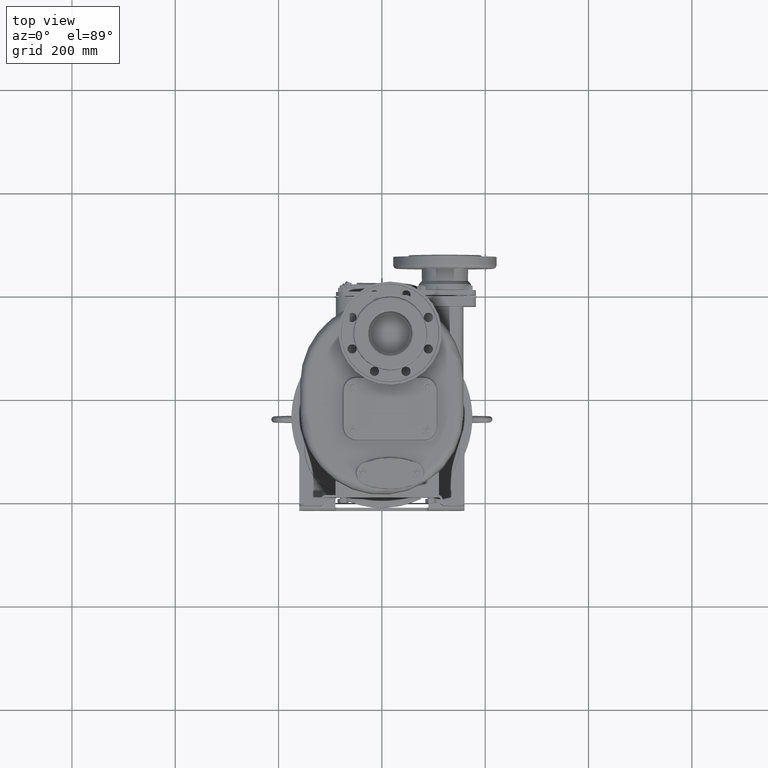
[diagram: clean part render]
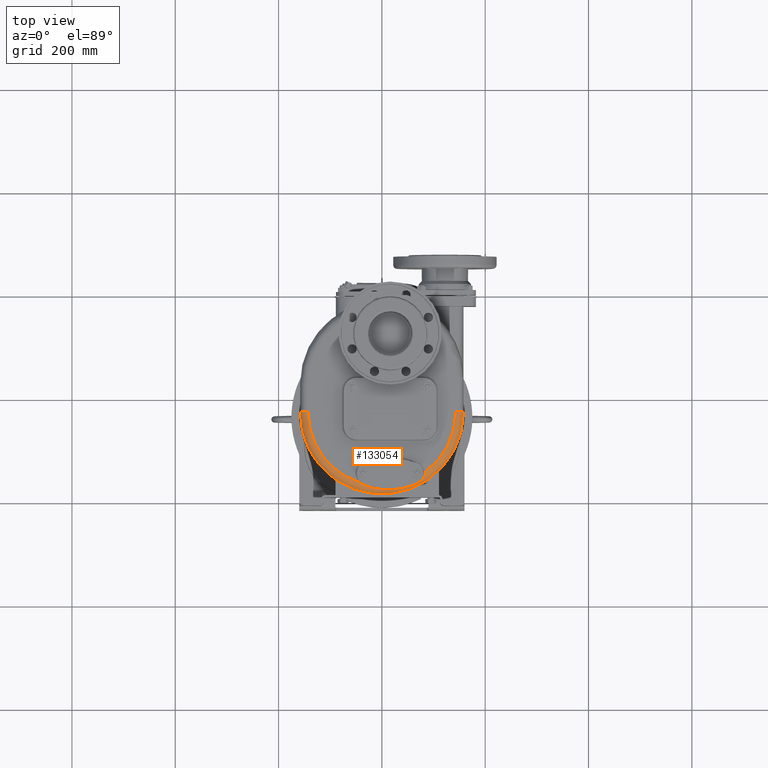
[diagram: same view with one face highlighted and labeled with its STEP entity id]
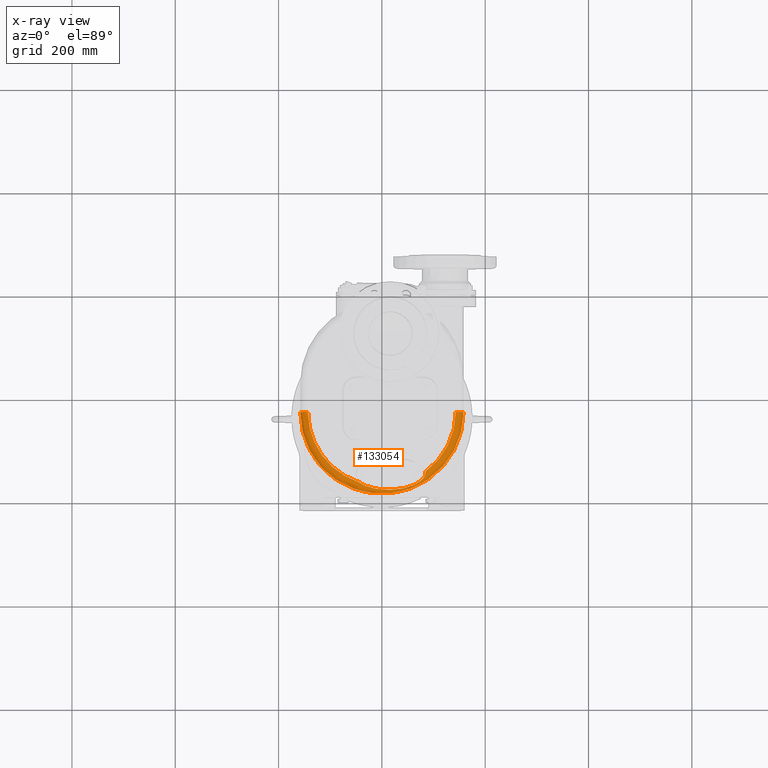
[diagram: x-ray of the same camera — body ghosted, the highlighted face saturated]
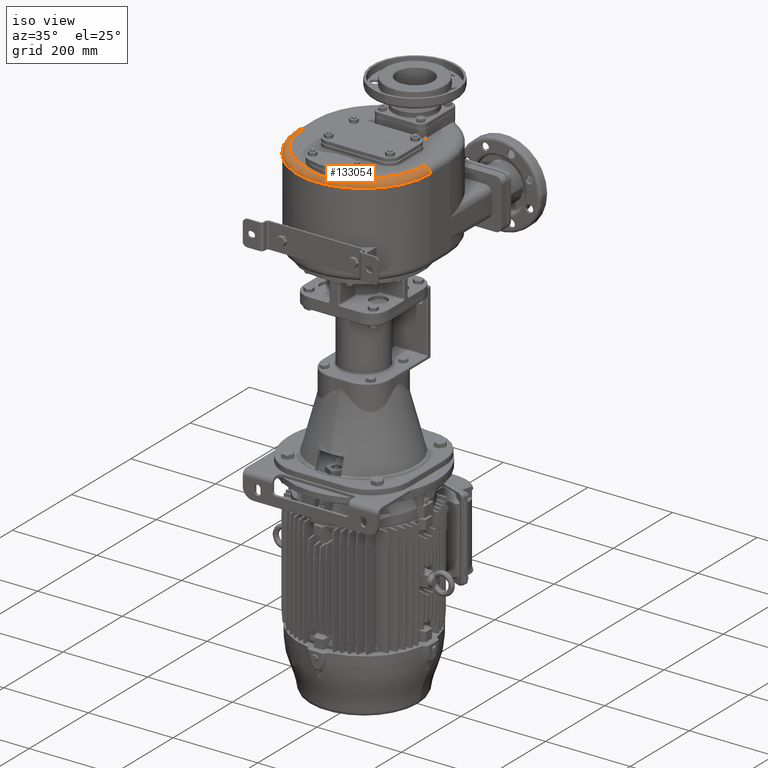
[diagram: same view with one face highlighted and labeled with its STEP entity id]
A machine part, top view. The second image highlights one B-rep face of the part: STEP entity #133054.
The next image is the same camera in x-ray: the body ghosted, the highlighted face saturated — about 0% of this face is hidden behind the body in this view.
A second angle (iso view) of the same face is appended — the face is thin or edge-on in the first view.
In plain terms, the highlighted toroidal blend (fillet) surface has major radius 143 mm and minor (blend) radius 15 mm.
Its self-contained STEP definition (entity closure, byte-faithful):
#40160=CARTESIAN_POINT('',(-4.409924901421E1,2.096964950101E1,
1.559999776601E2));
#40162=CARTESIAN_POINT('',(0.E0,1.57E2,1.56E2));
#40163=DIRECTION('',(0.E0,0.E0,1.E0));
#40164=DIRECTION('',(-1.E0,0.E0,0.E0));
#40165=AXIS2_PLACEMENT_3D('',#40162,#40163,#40164);
#40185=CARTESIAN_POINT('',(0.E0,1.57E2,1.56E2));
#40186=DIRECTION('',(0.E0,0.E0,1.E0));
#40187=DIRECTION('',(5.916859136736E-1,-8.061685801123E-1,0.E0));
#40188=AXIS2_PLACEMENT_3D('',#40185,#40186,#40187);
#40190=CARTESIAN_POINT('',(8.461108473852E1,4.171789323653E1,1.560000319229E2));
#40420=CARTESIAN_POINT('',(8.460359247683E1,3.855497053226E1,1.557803664729E2));
#40421=CARTESIAN_POINT('',(8.462182413228E1,3.871590638759E1,1.558011952710E2));
#40422=CARTESIAN_POINT('',(8.465262176851E1,3.903495510130E1,1.558399387258E2));
#40423=CARTESIAN_POINT('',(8.468265061589E1,3.950477363960E1,1.558892407209E2));
#40424=CARTESIAN_POINT('',(8.469713961478E1,3.996568165939E1,1.559296332185E2));
#40425=CARTESIAN_POINT('',(8.469668756076E1,4.041758653612E1,1.559610754823E2));
#40426=CARTESIAN_POINT('',(8.468210156164E1,4.086048475829E1,1.559835411101E2));
#40427=CARTESIAN_POINT('',(8.465404929221E1,4.129438218874E1,1.559969944910E2));
#40428=CARTESIAN_POINT('',(8.462677021856E1,4.157773326689E1,1.560000309021E2));
#40429=CARTESIAN_POINT('',(8.461108473852E1,4.171789323653E1,1.560000319229E2));
#40431=CARTESIAN_POINT('',(-1.43E2,1.57E2,1.41E2));
#40432=DIRECTION('',(0.E0,-1.E0,0.E0));
#40433=DIRECTION('',(0.E0,0.E0,1.E0));
#40434=AXIS2_PLACEMENT_3D('',#40431,#40432,#40433);
#40436=CARTESIAN_POINT('',(-4.409924901421E1,2.096964950101E1,
1.559999776601E2));
#40437=CARTESIAN_POINT('',(-4.380445396044E1,2.075047803573E1,
1.559999771572E2));
#40438=CARTESIAN_POINT('',(-4.319411842922E1,2.030872646438E1,
1.559972401822E2));
#40439=CARTESIAN_POINT('',(-4.221633246229E1,1.963902316639E1,
1.559849752002E2));
#40440=CARTESIAN_POINT('',(-4.117089998015E1,1.896177015423E1,
1.559648440645E2));
#40441=CARTESIAN_POINT('',(-4.005413770562E1,1.827771933360E1,
1.559370245731E2));
#40442=CARTESIAN_POINT('',(-3.886148781193E1,1.758771946025E1,
1.559017453147E2));
#40443=CARTESIAN_POINT('',(-3.758909452563E1,1.689301310389E1,
1.558592255724E2));
#40444=CARTESIAN_POINT('',(-3.623575119074E1,1.619660323775E1,
1.558098258832E2));
#40445=CARTESIAN_POINT('',(-3.480033010194E1,1.550123755814E1,
1.557539238938E2));
#40446=CARTESIAN_POINT('',(-3.328017468623E1,1.480903104098E1,
1.556918581019E2));
#40447=CARTESIAN_POINT('',(-3.167309617120E1,1.412231308167E1,
1.556239482997E2));
#40448=CARTESIAN_POINT('',(-2.997809181126E1,1.344405849052E1,
1.555505633330E2));
#40449=CARTESIAN_POINT('',(-2.819440350352E1,1.277716578232E1,
1.554720185314E2));
#40450=CARTESIAN_POINT('',(-2.632142455019E1,1.212465250162E1,
1.553886058052E2));
#40451=CARTESIAN_POINT('',(-2.435940976147E1,1.148973844517E1,
1.553005824648E2));
#40452=CARTESIAN_POINT('',(-2.230903754196E1,1.087565317605E1,
1.552081387927E2));
#40453=CARTESIAN_POINT('',(-2.017153667844E1,1.028578046953E1,
1.551114392340E2));
#40454=CARTESIAN_POINT('',(-1.794882705707E1,9.723409307260E0,
1.550105379417E2));
#40455=CARTESIAN_POINT('',(-1.564342602751E1,9.191994822902E0,
1.549054868307E2));
#40456=CARTESIAN_POINT('',(-1.325879392764E1,8.694827721085E0,
1.547962176920E2));
#40457=CARTESIAN_POINT('',(-1.079886079784E1,8.235246560101E0,
1.546826665123E2));
#40458=CARTESIAN_POINT('',(-8.268620147142E0,7.816358538263E0,
1.545646648222E2));
#40459=CARTESIAN_POINT('',(-5.673372025294E0,7.441191811587E0,
1.544420621994E2));
#40460=CARTESIAN_POINT('',(-3.019463376089E0,7.112449557151E0,
1.543146268013E2));
#40461=CARTESIAN_POINT('',(-3.134541818787E-1,6.832687165776E0,
1.541821901321E2));
#40462=CARTESIAN_POINT('',(2.437299078098E0,6.603992925258E0,1.540445100027E2));
#40463=CARTESIAN_POINT('',(5.225242169301E0,6.428312473003E0,1.539014932683E2));
#40464=CARTESIAN_POINT('',(8.042415262096E0,6.306979142083E0,1.537529651407E2));
#40465=CARTESIAN_POINT('',(1.088063084612E1,6.241211166889E0,1.535989985980E2));
#40466=CARTESIAN_POINT('',(1.373162739820E1,6.231581314603E0,1.534396236737E2));
#40467=CARTESIAN_POINT('',(1.658697368298E1,6.278428651094E0,1.532751146912E2));
#40468=CARTESIAN_POINT('',(1.943823663446E1,6.381694303545E0,1.531059280090E2));
#40469=CARTESIAN_POINT('',(2.227735308128E1,6.540699328384E0,1.529325127140E2));
#40470=CARTESIAN_POINT('',(2.509643220816E1,6.754818020596E0,1.527558285793E2));
#40471=CARTESIAN_POINT('',(2.788761121279E1,7.022753337043E0,1.525768559421E2));
#40472=CARTESIAN_POINT('',(3.064262511163E1,7.342702390556E0,1.523967783976E2));
#40473=CARTESIAN_POINT('',(3.335335709348E1,7.712900242625E0,1.522174096010E2));
#40474=CARTESIAN_POINT('',(3.601154514047E1,8.130597611679E0,1.520403936563E2));
#40475=CARTESIAN_POINT('',(3.860824409787E1,8.592766657225E0,1.518679265989E2));
#40476=CARTESIAN_POINT('',(4.113473791370E1,9.095916908105E0,1.517024570493E2));
#40477=CARTESIAN_POINT('',(4.358275414241E1,9.635660840155E0,1.515461280336E2));
#40478=CARTESIAN_POINT('',(4.594382964457E1,1.020761610344E1,1.514017402133E2));
#40479=CARTESIAN_POINT('',(4.821111130503E1,1.080654459880E1,1.512713005565E2));
#40480=CARTESIAN_POINT('',(5.037977006529E1,1.142773708708E1,1.511569638330E2));
#40481=CARTESIAN_POINT('',(5.244516544889E1,1.206589710613E1,1.510603732388E2));
#40482=CARTESIAN_POINT('',(5.440777112453E1,1.271698324016E1,1.509824945009E2));
#40483=CARTESIAN_POINT('',(5.626730760676E1,1.337694543932E1,1.509242345793E2));
#40484=CARTESIAN_POINT('',(5.802754929428E1,1.404278708591E1,1.508855545395E2));
#40485=CARTESIAN_POINT('',(5.969264676571E1,1.471235360862E1,1.508665397244E2));
#40486=CARTESIAN_POINT('',(6.126773442492E1,1.538384491576E1,1.508666323551E2));
#40487=CARTESIAN_POINT('',(6.275869243632E1,1.605637544688E1,1.508852921175E2));
#40488=CARTESIAN_POINT('',(6.417122427114E1,1.672936502541E1,1.509217955841E2));
#40489=CARTESIAN_POINT('',(6.551073786318E1,1.740245542159E1,1.509752709930E2));
#40490=CARTESIAN_POINT('',(6.678255117116E1,1.807577219645E1,1.510449212924E2));
#40491=CARTESIAN_POINT('',(6.799118169908E1,1.874931074850E1,1.511297949664E2));
#40492=CARTESIAN_POINT('',(6.914063056416E1,1.942319020036E1,1.512289816761E2));
#40493=CARTESIAN_POINT('',(7.023466617809E1,2.009768088327E1,1.513415399175E2));
#40494=CARTESIAN_POINT('',(7.127598207238E1,2.077267594297E1,1.514664560732E2));
#40495=CARTESIAN_POINT('',(7.226740848398E1,2.144837347913E1,1.516027484661E2));
#40496=CARTESIAN_POINT('',(7.321083988737E1,2.212453677118E1,1.517493351596E2));
#40497=CARTESIAN_POINT('',(7.410811671245E1,2.280103541311E1,1.519051469485E2));
#40498=CARTESIAN_POINT('',(7.496067676357E1,2.347753161459E1,1.520690414605E2));
#40499=CARTESIAN_POINT('',(7.576962720298E1,2.415353794698E1,1.522398577156E2));
#40500=CARTESIAN_POINT('',(7.653611564381E1,2.482859676854E1,1.524164136503E2));
#40501=CARTESIAN_POINT('',(7.726093577384E1,2.550199886702E1,1.525974875651E2));
#40502=CARTESIAN_POINT('',(7.794496109287E1,2.617310479631E1,1.527818921835E2));
#40503=CARTESIAN_POINT('',(7.858903514177E1,2.684116997028E1,1.529684083824E2));
#40504=CARTESIAN_POINT('',(7.919388861684E1,2.750537893586E1,1.531558622086E2));
#40505=CARTESIAN_POINT('',(7.976034095098E1,2.816494119564E1,1.533431159972E2));
#40506=CARTESIAN_POINT('',(8.028932301223E1,2.881907514694E1,1.535290592654E2));
#40507=CARTESIAN_POINT('',(8.078171395330E1,2.946698834292E1,1.537126629820E2));
#40508=CARTESIAN_POINT('',(8.123844116932E1,3.010788072649E1,1.538929492525E2));
#40509=CARTESIAN_POINT('',(8.166059386352E1,3.074104947025E1,1.540690132604E2));
#40510=CARTESIAN_POINT('',(8.204927578746E1,3.136586099369E1,1.542400519357E2));
#40511=CARTESIAN_POINT('',(8.240557246088E1,3.198163608379E1,1.544053178482E2));
#40512=CARTESIAN_POINT('',(8.273070566619E1,3.258783168675E1,1.545641575466E2));
#40513=CARTESIAN_POINT('',(8.302595920756E1,3.318411437490E1,1.547160475859E2));
#40514=CARTESIAN_POINT('',(8.329256936760E1,3.377011461549E1,1.548605147666E2));
#40515=CARTESIAN_POINT('',(8.353182529345E1,3.434554401475E1,1.549971558654E2));
#40516=CARTESIAN_POINT('',(8.374494684957E1,3.491015105360E1,1.551256436354E2));
#40517=CARTESIAN_POINT('',(8.393313419003E1,3.546367932930E1,1.552456976777E2));
#40518=CARTESIAN_POINT('',(8.409764681189E1,3.600593925199E1,1.553570922376E2));
#40519=CARTESIAN_POINT('',(8.423971422962E1,3.653710883918E1,1.554597345935E2));
#40520=CARTESIAN_POINT('',(8.436050190269E1,3.705740714757E1,1.555535593507E2));
#40521=CARTESIAN_POINT('',(8.446122035012E1,3.756714517615E1,1.556385225531E2));
#40522=CARTESIAN_POINT('',(8.454285520607E1,3.806667236441E1,1.557146126924E2));
#40523=CARTESIAN_POINT('',(8.458527159826E1,3.839332805670E1,1.557594498451E2));
#40524=CARTESIAN_POINT('',(8.460359247683E1,3.855497053226E1,1.557803664729E2));
#40526=CARTESIAN_POINT('',(1.43E2,1.57E2,1.41E2));
#40527=DIRECTION('',(0.E0,1.E0,0.E0));
#40528=DIRECTION('',(0.E0,0.E0,1.E0));
#40529=AXIS2_PLACEMENT_3D('',#40526,#40527,#40528);
#46274=CARTESIAN_POINT('',(0.E0,1.57E2,1.41E2));
#46275=DIRECTION('',(0.E0,0.E0,1.E0));
#46276=DIRECTION('',(-1.E0,0.E0,0.E0));
#46277=AXIS2_PLACEMENT_3D('',#46274,#46275,#46276);
#77264=CARTESIAN_POINT('',(1.43E2,1.57E2,1.56E2));
#77265=VERTEX_POINT('',#77264);
#77266=CARTESIAN_POINT('',(1.58E2,1.57E2,1.41E2));
#77267=VERTEX_POINT('',#77266);
#77268=CARTESIAN_POINT('',(-1.58E2,1.57E2,1.41E2));
#77269=VERTEX_POINT('',#77268);
#77271=CARTESIAN_POINT('',(-1.43E2,1.57E2,1.56E2));
#77273=VERTEX_POINT('',#77271);
#77330=VERTEX_POINT('',#40160);
#77332=VERTEX_POINT('',#40190);
#77334=VERTEX_POINT('',#40420);
#133036=CARTESIAN_POINT('',(0.E0,1.57E2,1.41E2));
#133037=DIRECTION('',(0.E0,0.E0,-1.E0));
#133038=DIRECTION('',(-9.999725603430E-1,7.408006546467E-3,0.E0));
#133039=AXIS2_PLACEMENT_3D('',#133036,#133037,#133038);
#133040=TOROIDAL_SURFACE('',#133039,1.43E2,1.5E1);
#133041=ORIENTED_EDGE('',*,*,#133026,.T.);
#133042=ORIENTED_EDGE('',*,*,#132735,.T.);
#133044=ORIENTED_EDGE('',*,*,#133043,.T.);
#133046=ORIENTED_EDGE('',*,*,#133045,.F.);
#133048=ORIENTED_EDGE('',*,*,#133047,.F.);
#133049=ORIENTED_EDGE('',*,*,#132721,.T.);
#133051=ORIENTED_EDGE('',*,*,#133050,.T.);
#133052=EDGE_LOOP('',(#133041,#133042,#133044,#133046,#133048,#133049,#133051));
#133053=FACE_OUTER_BOUND('',#133052,.F.);
#133054=ADVANCED_FACE('',(#133053),#133040,.T.);
#40166=CIRCLE('',#40165,1.43E2);
#40189=CIRCLE('',#40188,1.43E2);
#40430=B_SPLINE_CURVE_WITH_KNOTS('',3,(#40420,#40421,#40422,#40423,#40424,
#40425,#40426,#40427,#40428,#40429),.UNSPECIFIED.,.F.,.F.,(4,1,1,1,1,1,1,4),(
0.E0,1.428571428571E-1,2.857142857143E-1,4.285714285714E-1,5.714285714286E-1,
7.142857142857E-1,8.571428571429E-1,1.E0),.UNSPECIFIED.);
#40435=CIRCLE('',#40434,1.5E1);
#40525=B_SPLINE_CURVE_WITH_KNOTS('',3,(#40436,#40437,#40438,#40439,#40440,
#40441,#40442,#40443,#40444,#40445,#40446,#40447,#40448,#40449,#40450,#40451,
#40452,#40453,#40454,#40455,#40456,#40457,#40458,#40459,#40460,#40461,#40462,
#40463,#40464,#40465,#40466,#40467,#40468,#40469,#40470,#40471,#40472,#40473,
#40474,#40475,#40476,#40477,#40478,#40479,#40480,#40481,#40482,#40483,#40484,
#40485,#40486,#40487,#40488,#40489,#40490,#40491,#40492,#40493,#40494,#40495,
#40496,#40497,#40498,#40499,#40500,#40501,#40502,#40503,#40504,#40505,#40506,
#40507,#40508,#40509,#40510,#40511,#40512,#40513,#40514,#40515,#40516,#40517,
#40518,#40519,#40520,#40521,#40522,#40523,#40524),.UNSPECIFIED.,.F.,.F.,(4,1,1,
1,1,1,1,1,1,1,1,1,1,1,1,1,1,1,1,1,1,1,1,1,1,1,1,1,1,1,1,1,1,1,1,1,1,1,1,1,1,1,1,
1,1,1,1,1,1,1,1,1,1,1,1,1,1,1,1,1,1,1,1,1,1,1,1,1,1,1,1,1,1,1,1,1,1,1,1,1,1,1,1,
1,1,1,4),(0.E0,1.162790697674E-2,2.325581395349E-2,3.488372093023E-2,
4.651162790698E-2,5.813953488372E-2,6.976744186047E-2,8.139534883721E-2,
9.302325581395E-2,1.046511627907E-1,1.162790697674E-1,1.279069767442E-1,
1.395348837209E-1,1.511627906977E-1,1.627906976744E-1,1.744186046512E-1,
1.860465116279E-1,1.976744186047E-1,2.093023255814E-1,2.209302325581E-1,
2.325581395349E-1,2.441860465116E-1,2.558139534884E-1,2.674418604651E-1,
2.790697674419E-1,2.906976744186E-1,3.023255813953E-1,3.139534883721E-1,
3.255813953488E-1,3.372093023256E-1,3.488372093023E-1,3.604651162791E-1,
3.720930232558E-1,3.837209302326E-1,3.953488372093E-1,4.069767441860E-1,
4.186046511628E-1,4.302325581395E-1,4.418604651163E-1,4.534883720930E-1,
4.651162790698E-1,4.767441860465E-1,4.883720930233E-1,5.E-1,5.116279069767E-1,
5.232558139535E-1,5.348837209302E-1,5.465116279070E-1,5.581395348837E-1,
5.697674418605E-1,5.813953488372E-1,5.930232558140E-1,6.046511627907E-1,
6.162790697674E-1,6.279069767442E-1,6.395348837209E-1,6.511627906977E-1,
6.627906976744E-1,6.744186046512E-1,6.860465116279E-1,6.976744186047E-1,
7.093023255814E-1,7.209302325581E-1,7.325581395349E-1,7.441860465116E-1,
7.558139534884E-1,7.674418604651E-1,7.790697674419E-1,7.906976744186E-1,
8.023255813953E-1,8.139534883721E-1,8.255813953488E-1,8.372093023256E-1,
8.488372093023E-1,8.604651162791E-1,8.720930232558E-1,8.837209302326E-1,
8.953488372093E-1,9.069767441860E-1,9.186046511628E-1,9.302325581395E-1,
9.418604651163E-1,9.534883720930E-1,9.651162790698E-1,9.767441860465E-1,
9.883720930233E-1,1.E0),.UNSPECIFIED.);
#40530=CIRCLE('',#40529,1.5E1);
#46278=CIRCLE('',#46277,1.58E2);
#132721=EDGE_CURVE('',#77273,#77330,#40166,.T.);
#132735=EDGE_CURVE('',#77332,#77265,#40189,.T.);
#133026=EDGE_CURVE('',#77334,#77332,#40430,.T.);
#133043=EDGE_CURVE('',#77265,#77267,#40530,.T.);
#133045=EDGE_CURVE('',#77269,#77267,#46278,.T.);
#133047=EDGE_CURVE('',#77273,#77269,#40435,.T.);
#133050=EDGE_CURVE('',#77330,#77334,#40525,.T.);